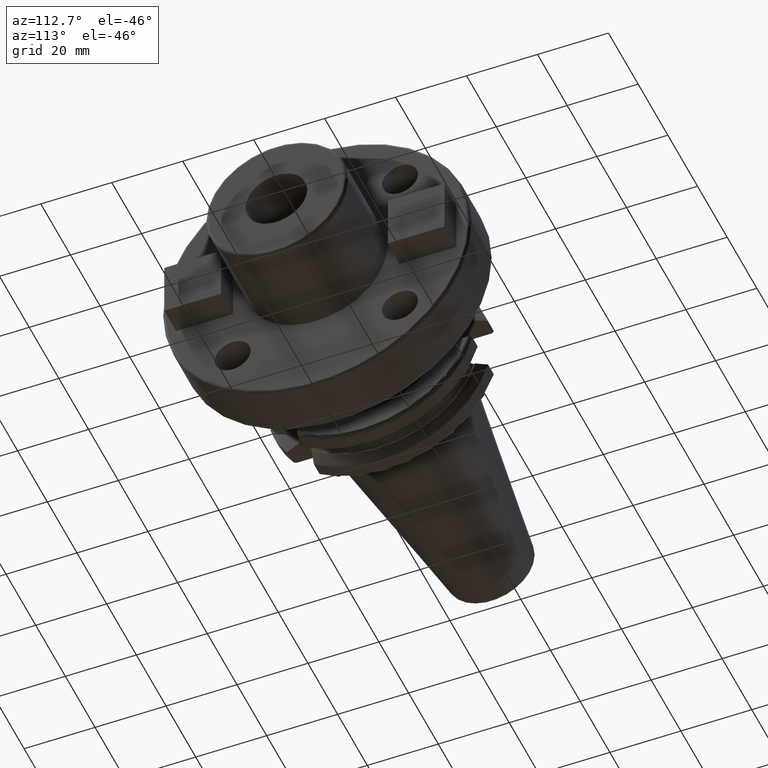
[diagram: clean part render]
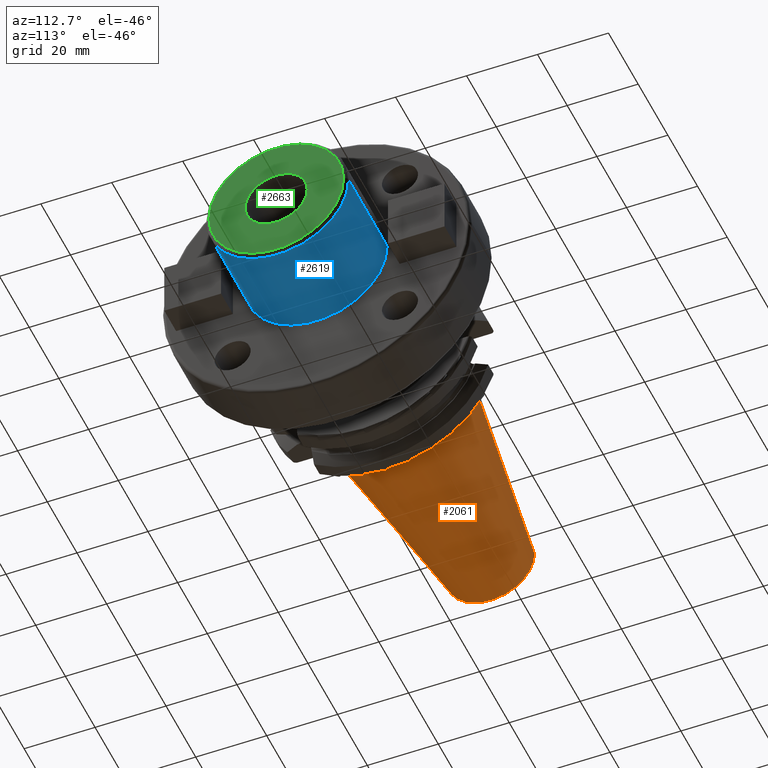
[diagram: same view with three faces highlighted in distinct colors, each labeled with its STEP entity id]
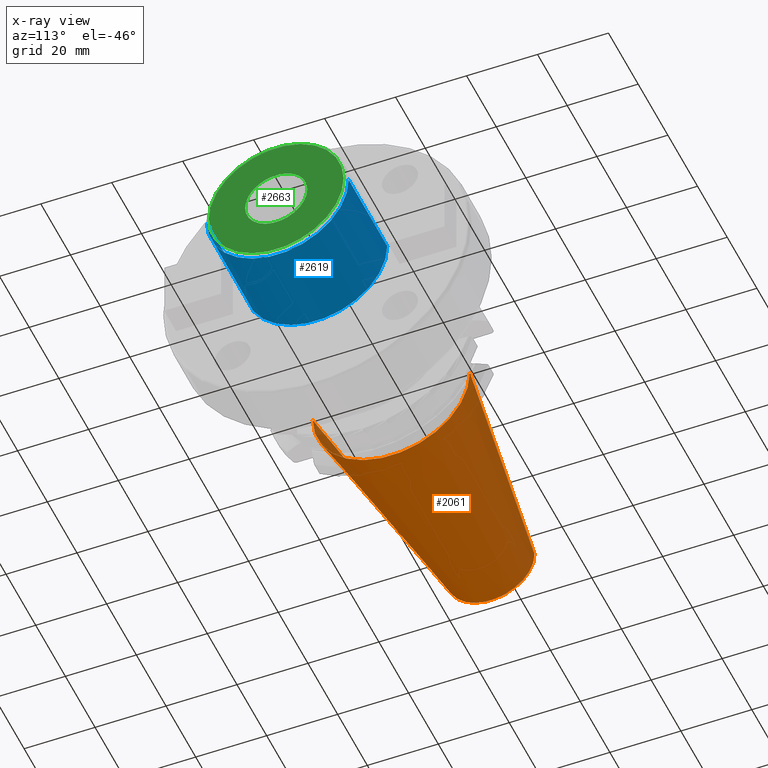
[diagram: x-ray of the same camera — body ghosted, the three highlighted faces saturated]
A machine part, auxiliary view with three faces highlighted in distinct colors.
The next image is the same camera in x-ray (body ghosted, the three faces saturated) — at least one of them is partly hidden behind the body in this view.
Their STEP definitions:

[orange] entity #2061 — the highlighted conical surface has half-angle 8.298 deg.
#32=CARTESIAN_POINT('',(-6.743710273571E1,0.E0,0.E0));
#33=DIRECTION('',(-1.E0,0.E0,0.E0));
#34=DIRECTION('',(0.E0,1.E0,0.E0));
#35=AXIS2_PLACEMENT_3D('',#32,#33,#34);
#47=DIRECTION('',(-9.895312636440E-1,-1.443186691705E-1,0.E0));
#48=VECTOR('',#47,6.765568998391E1);
#49=CARTESIAN_POINT('',(-4.896823332305E-1,2.215358204157E1,0.E0));
#50=LINE('',#49,#48);
#51=DIRECTION('',(-9.895312636440E-1,1.443186691705E-1,0.E0));
#52=VECTOR('',#51,6.765568998391E1);
#53=CARTESIAN_POINT('',(-4.896823332305E-1,-2.215358204157E1,0.E0));
#54=LINE('',#53,#52);
#55=CARTESIAN_POINT('',(-4.896823332305E-1,0.E0,0.E0));
#56=DIRECTION('',(-1.E0,0.E0,0.E0));
#57=DIRECTION('',(0.E0,1.E0,0.E0));
#58=AXIS2_PLACEMENT_3D('',#55,#56,#57);
#1632=CARTESIAN_POINT('',(-6.743710273571E1,1.238960290128E1,0.E0));
#1634=VERTEX_POINT('',#1632);
#1636=CARTESIAN_POINT('',(-6.743710273571E1,-1.238960290128E1,0.E0));
#1638=VERTEX_POINT('',#1636);
#1700=CARTESIAN_POINT('',(-4.896823332305E-1,2.215358204157E1,0.E0));
#1701=VERTEX_POINT('',#1700);
#1702=CARTESIAN_POINT('',(-4.896823332305E-1,-2.215358204157E1,0.E0));
#1703=VERTEX_POINT('',#1702);
#2049=CARTESIAN_POINT('',(-3.396339253447E1,0.E0,0.E0));
#2050=DIRECTION('',(1.E0,0.E0,0.E0));
#2051=DIRECTION('',(0.E0,-1.E0,0.E0));
#2052=AXIS2_PLACEMENT_3D('',#2049,#2050,#2051);
#2053=CONICAL_SURFACE('',#2052,1.727159247143E1,8.297826828206E0);
#2054=ORIENTED_EDGE('',*,*,#2039,.T.);
#2055=ORIENTED_EDGE('',*,*,#2016,.T.);
#2056=ORIENTED_EDGE('',*,*,#2043,.F.);
#2058=ORIENTED_EDGE('',*,*,#2057,.F.);
#2059=EDGE_LOOP('',(#2054,#2055,#2056,#2058));
#2060=FACE_OUTER_BOUND('',#2059,.F.);
#2061=ADVANCED_FACE('',(#2060),#2053,.T.);
#36=CIRCLE('',#35,1.238960290128E1);
#59=CIRCLE('',#58,2.215358204157E1);
#2016=EDGE_CURVE('',#1634,#1638,#36,.T.);
#2039=EDGE_CURVE('',#1701,#1634,#50,.T.);
#2043=EDGE_CURVE('',#1703,#1638,#54,.T.);
#2057=EDGE_CURVE('',#1701,#1703,#59,.T.);

[blue] entity #2619 — the highlighted cylindrical surface (partial cylindrical patch) has radius 20 mm, axis along (1, 0, 0).
#460=CARTESIAN_POINT('',(5.E1,0.E0,0.E0));
#461=DIRECTION('',(-1.E0,0.E0,0.E0));
#462=DIRECTION('',(0.E0,1.E0,0.E0));
#463=AXIS2_PLACEMENT_3D('',#460,#461,#462);
#552=DIRECTION('',(-1.E0,0.E0,1.205925930877E-13));
#553=VECTOR('',#552,2.6E1);
#554=CARTESIAN_POINT('',(7.6E1,2.E1,-3.133774557880E-12));
#555=LINE('',#554,#553);
#556=DIRECTION('',(-1.E0,0.E0,-1.209106492722E-13));
#557=VECTOR('',#556,2.6E1);
#558=CARTESIAN_POINT('',(7.6E1,-2.E1,3.142044018677E-12));
#559=LINE('',#558,#557);
#560=CARTESIAN_POINT('',(7.6E1,0.E0,0.E0));
#561=DIRECTION('',(-1.E0,0.E0,0.E0));
#562=DIRECTION('',(0.E0,1.E0,0.E0));
#563=AXIS2_PLACEMENT_3D('',#560,#561,#562);
#1862=CARTESIAN_POINT('',(5.E1,2.E1,0.E0));
#1863=CARTESIAN_POINT('',(5.E1,-2.E1,0.E0));
#1864=VERTEX_POINT('',#1862);
#1865=VERTEX_POINT('',#1863);
#1880=CARTESIAN_POINT('',(7.6E1,2.E1,-3.133774557880E-12));
#1881=VERTEX_POINT('',#1880);
#1882=CARTESIAN_POINT('',(7.6E1,-2.E1,3.142044018677E-12));
#1883=VERTEX_POINT('',#1882);
#2607=CARTESIAN_POINT('',(1.61525E1,0.E0,0.E0));
#2608=DIRECTION('',(1.E0,0.E0,0.E0));
#2609=DIRECTION('',(0.E0,-1.E0,0.E0));
#2610=AXIS2_PLACEMENT_3D('',#2607,#2608,#2609);
#2611=CYLINDRICAL_SURFACE('',#2610,2.E1);
#2612=ORIENTED_EDGE('',*,*,#2597,.T.);
#2613=ORIENTED_EDGE('',*,*,#2543,.T.);
#2614=ORIENTED_EDGE('',*,*,#2601,.F.);
#2616=ORIENTED_EDGE('',*,*,#2615,.F.);
#2617=EDGE_LOOP('',(#2612,#2613,#2614,#2616));
#2618=FACE_OUTER_BOUND('',#2617,.F.);
#2619=ADVANCED_FACE('',(#2618),#2611,.T.);
#464=CIRCLE('',#463,2.E1);
#564=CIRCLE('',#563,2.E1);
#2543=EDGE_CURVE('',#1864,#1865,#464,.T.);
#2597=EDGE_CURVE('',#1881,#1864,#555,.T.);
#2601=EDGE_CURVE('',#1883,#1865,#559,.T.);
#2615=EDGE_CURVE('',#1881,#1883,#564,.T.);

[green] entity #2663 — the highlighted planar face has unit normal (1, 0, 0).
#575=CARTESIAN_POINT('',(7.7E1,0.E0,0.E0));
#576=DIRECTION('',(-1.E0,0.E0,0.E0));
#577=DIRECTION('',(0.E0,1.E0,0.E0));
#578=AXIS2_PLACEMENT_3D('',#575,#576,#577);
#580=CARTESIAN_POINT('',(7.7E1,0.E0,0.E0));
#581=DIRECTION('',(-1.E0,0.E0,0.E0));
#582=DIRECTION('',(0.E0,-1.E0,0.E0));
#583=AXIS2_PLACEMENT_3D('',#580,#581,#582);
#585=CARTESIAN_POINT('',(7.7E1,0.E0,0.E0));
#586=DIRECTION('',(1.E0,0.E0,0.E0));
#587=DIRECTION('',(0.E0,-1.E0,0.E0));
#588=AXIS2_PLACEMENT_3D('',#585,#586,#587);
#590=CARTESIAN_POINT('',(7.7E1,0.E0,0.E0));
#591=DIRECTION('',(1.E0,0.E0,0.E0));
#592=DIRECTION('',(0.E0,1.E0,0.E0));
#593=AXIS2_PLACEMENT_3D('',#590,#591,#592);
#1884=CARTESIAN_POINT('',(7.7E1,1.9E1,0.E0));
#1885=CARTESIAN_POINT('',(7.7E1,-1.9E1,0.E0));
#1886=VERTEX_POINT('',#1884);
#1887=VERTEX_POINT('',#1885);
#1926=CARTESIAN_POINT('',(7.7E1,-8.75E0,0.E0));
#1927=CARTESIAN_POINT('',(7.7E1,8.75E0,0.E0));
#1928=VERTEX_POINT('',#1926);
#1929=VERTEX_POINT('',#1927);
#2648=CARTESIAN_POINT('',(7.7E1,0.E0,0.E0));
#2649=DIRECTION('',(1.E0,0.E0,0.E0));
#2650=DIRECTION('',(0.E0,-1.E0,0.E0));
#2651=AXIS2_PLACEMENT_3D('',#2648,#2649,#2650);
#2652=PLANE('',#2651);
#2653=ORIENTED_EDGE('',*,*,#2628,.T.);
#2654=ORIENTED_EDGE('',*,*,#2642,.T.);
#2655=EDGE_LOOP('',(#2653,#2654));
#2656=FACE_OUTER_BOUND('',#2655,.F.);
#2658=ORIENTED_EDGE('',*,*,#2657,.T.);
#2660=ORIENTED_EDGE('',*,*,#2659,.T.);
#2661=EDGE_LOOP('',(#2658,#2660));
#2662=FACE_BOUND('',#2661,.F.);
#2663=ADVANCED_FACE('',(#2656,#2662),#2652,.T.);
#579=CIRCLE('',#578,1.9E1);
#584=CIRCLE('',#583,1.9E1);
#589=CIRCLE('',#588,8.75E0);
#594=CIRCLE('',#593,8.75E0);
#2628=EDGE_CURVE('',#1886,#1887,#579,.T.);
#2642=EDGE_CURVE('',#1887,#1886,#584,.T.);
#2657=EDGE_CURVE('',#1928,#1929,#589,.T.);
#2659=EDGE_CURVE('',#1929,#1928,#594,.T.);